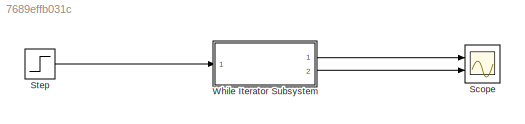
MODEL slx_7689effb031c
KIND model
CONFIG AbsTol = auto
CONFIG FixedStep = auto
CONFIG MaxStep = auto
CONFIG MinStep = auto
CONFIG RelTol = 1e-3
CONFIG SampleTimeConstraint = Unconstrained
CONFIG Solver = VariableStepAuto
CONFIG SolverMode = Auto
CONFIG SolverName = VariableStepAuto
CONFIG StartFcn = open_scope
CONFIG StartTime = 0.0
CONFIG StopTime = 10.0
BLOCK [Scope] Scope
  NumInputPorts = 2
  Ports = [2]
  ScopeSpecificationString = Simulink.scopes.TimeScopeBlockCfg('CurrentConfiguration', extmgr.ConfigurationSet(extmgr.Configuration('Core','General UI',true),extmgr.Configuration('Core','Source UI',true),extmgr.Configuration('Sources','WiredSimulink',true,'DataLoggingLimitDataPoints',true,'DataLoggingSaveFormat','Array','DataLoggingDecimation','1','DataLoggingDecimateData',true),extmgr.Configuration('Visuals','Time Domain',tr...<+2052ch>
BLOCK [Step] Step
  SampleTime = 0
  Time = 5
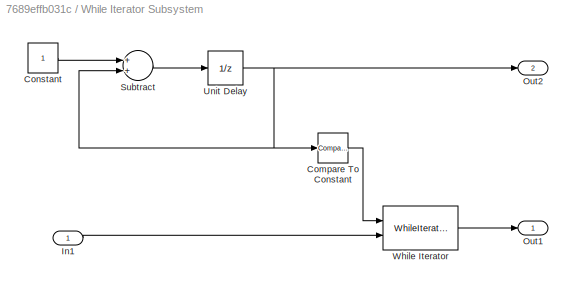
BLOCK [SubSystem] While Iterator Subsystem
  Ports = [1, 2]
  RequestExecContextInheritance = off
  TreatAsAtomicUnit = on
  Variant = off
BLOCK [Reference] While Iterator Subsystem/Compare To Constant  REF=simulink/Logic and Bit
Operations/Compare
To Constant
  Ports = [1, 1]
  SourceBlock = simulink/Logic and Bit\nOperations/Compare\nTo Constant
  SourceType = Compare To Constant
BLOCK [Constant] While Iterator Subsystem/Constant
BLOCK [Inport] While Iterator Subsystem/In1
  IconDisplay = Port number
BLOCK [Outport] While Iterator Subsystem/Out1
  IconDisplay = Port number
BLOCK [Outport] While Iterator Subsystem/Out2
  IconDisplay = Port number
  Port = 2
BLOCK [Sum] While Iterator Subsystem/Subtract
  InputSameDT = off
  OutDataTypeStr = Inherit: Inherit via internal rule
  Ports = [2, 1]
  SaturateOnIntegerOverflow = off
BLOCK [UnitDelay] While Iterator Subsystem/Unit Delay
  InputProcessing = Elements as channels (sample based)
  SampleTime = -1
BLOCK [WhileIterator] While Iterator Subsystem/While Iterator
  Ports = [2, 1]
  ShowIterationPort = on
LINE Step:1 -> While Iterator Subsystem:1
LINE While Iterator Subsystem/Compare To Constant:1 -> While Iterator Subsystem/While Iterator:1
LINE While Iterator Subsystem/Constant:1 -> While Iterator Subsystem/Subtract:1
LINE While Iterator Subsystem/In1:1 -> While Iterator Subsystem/While Iterator:2
LINE While Iterator Subsystem/Subtract:1 -> While Iterator Subsystem/Unit Delay:1
NET While Iterator Subsystem/Unit Delay:1 -> While Iterator Subsystem/Compare To Constant:1, While Iterator Subsystem/Out2:1, While Iterator Subsystem/Subtract:2
LINE While Iterator Subsystem/While Iterator:1 -> While Iterator Subsystem/Out1:1
LINE While Iterator Subsystem:1 -> Scope:1
LINE While Iterator Subsystem:2 -> Scope:2
note: NET lines group one-source signal fan-out (src -> all destinations, sorted); 1:1 wires keep LINE
